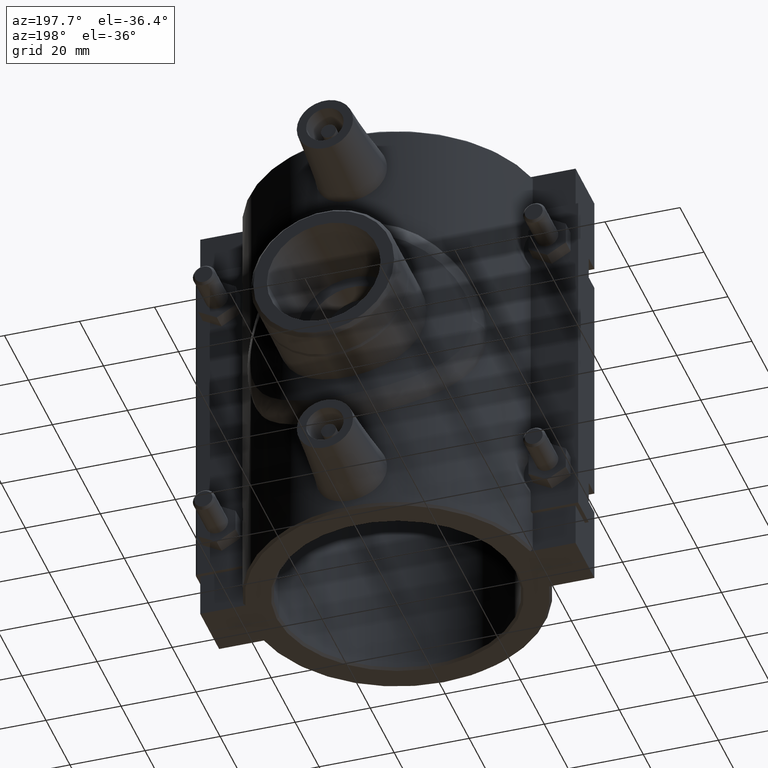
[diagram: clean part render]
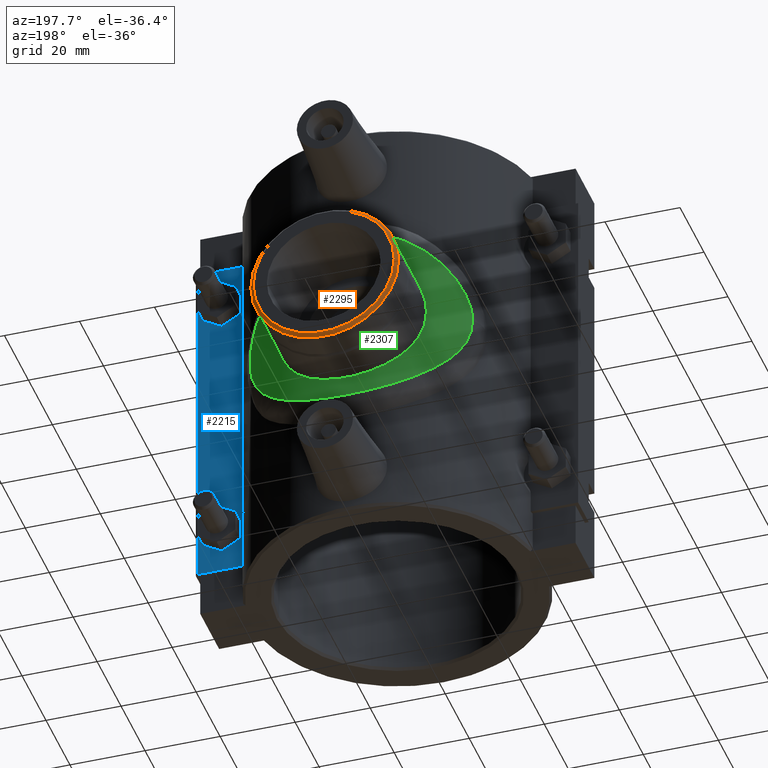
[diagram: same view with three faces highlighted in distinct colors, each labeled with its STEP entity id]
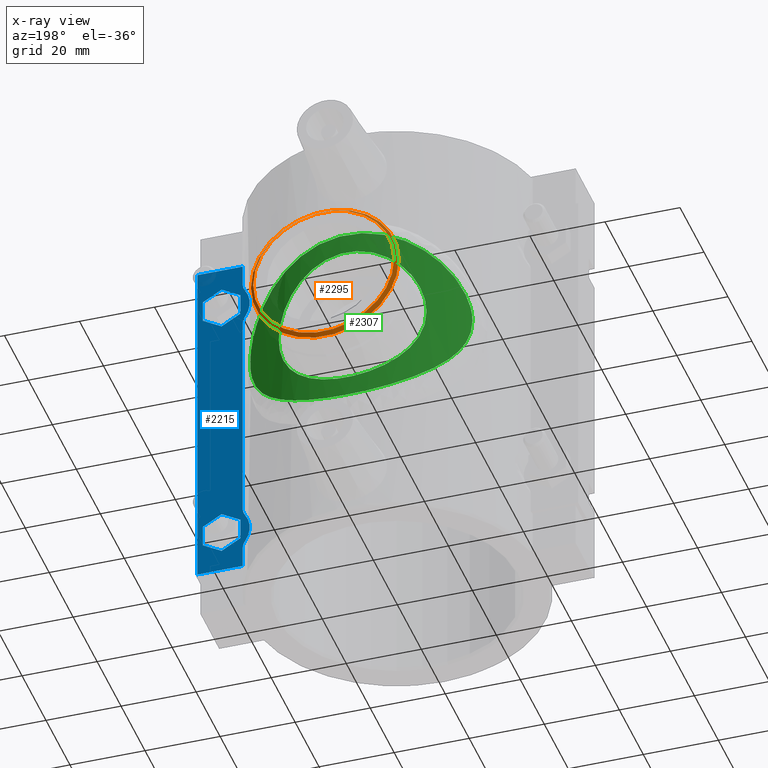
[diagram: x-ray of the same camera — body ghosted, the three highlighted faces saturated]
A machine part, auxiliary view with three faces highlighted in distinct colors.
The next image is the same camera in x-ray (body ghosted, the three faces saturated) — at least one of them is partly hidden behind the body in this view.
Their STEP definitions:

[orange] entity #2295 — the highlighted conical surface has half-angle 45 deg.
#31=CONICAL_SURFACE('',#2486,19.234785,44.9999999999999);
#120=FACE_BOUND('',#436,.T.);
#264=FACE_OUTER_BOUND('',#435,.T.);
#435=EDGE_LOOP('',(#1957));
#436=EDGE_LOOP('',(#1958));
#931=CIRCLE('',#2487,18.78042);
#932=CIRCLE('',#2488,19.68915);
#1136=VERTEX_POINT('',#4221);
#1137=VERTEX_POINT('',#4223);
#1428=EDGE_CURVE('',#1136,#1136,#931,.T.);
#1429=EDGE_CURVE('',#1137,#1137,#932,.T.);
#1957=ORIENTED_EDGE('',*,*,#1428,.T.);
#1958=ORIENTED_EDGE('',*,*,#1429,.T.);
#2295=ADVANCED_FACE('',(#264,#120),#31,.T.);
#2486=AXIS2_PLACEMENT_3D('',#4220,#3007,#3008);
#2487=AXIS2_PLACEMENT_3D('',#4222,#3009,#3010);
#2488=AXIS2_PLACEMENT_3D('',#4224,#3011,#3012);
#3007=DIRECTION('center_axis',(0.,-1.,0.));
#3008=DIRECTION('ref_axis',(1.,0.,0.));
#3009=DIRECTION('center_axis',(0.,-1.,0.));
#3010=DIRECTION('ref_axis',(1.,0.,0.));
#3011=DIRECTION('center_axis',(0.,1.,0.));
#3012=DIRECTION('ref_axis',(1.,0.,0.));
#4220=CARTESIAN_POINT('Origin',(0.,61.045635,0.));
#4221=CARTESIAN_POINT('',(-18.78042,61.5,-2.29993812396429E-15));
#4222=CARTESIAN_POINT('Origin',(0.,61.5,0.));
#4223=CARTESIAN_POINT('',(-19.68915,60.59127,2.41122545254321E-15));
#4224=CARTESIAN_POINT('Origin',(0.,60.59127,0.));

[blue] entity #2215 — the highlighted planar face has unit normal (-0, 1, 0).
#90=FACE_BOUND('',#326,.T.);
#91=FACE_BOUND('',#327,.T.);
#145=B_SPLINE_CURVE_WITH_KNOTS('',3,(#3436,#3437,#3438,#3439,#3440,#3441,
#3442),.UNSPECIFIED.,.F.,.F.,(4,3,4),(-0.211530269968673,-0.106492131072809,
0.),.UNSPECIFIED.);
#146=B_SPLINE_CURVE_WITH_KNOTS('',3,(#3446,#3447,#3448,#3449,#3450,#3451,
#3452),.UNSPECIFIED.,.F.,.F.,(4,3,4),(-0.211768919236697,-0.1048604840116,
0.),.UNSPECIFIED.);
#147=B_SPLINE_CURVE_WITH_KNOTS('',3,(#3456,#3457,#3458,#3459,#3460,#3461,
#3462),.UNSPECIFIED.,.F.,.F.,(4,3,4),(-0.211530269968692,-0.106492131034653,
0.),.UNSPECIFIED.);
#148=B_SPLINE_CURVE_WITH_KNOTS('',3,(#3466,#3467,#3468,#3469,#3470,#3471,
#3472),.UNSPECIFIED.,.F.,.F.,(4,3,4),(-0.211768919236665,-0.104860484028855,
0.),.UNSPECIFIED.);
#184=FACE_OUTER_BOUND('',#325,.T.);
#325=EDGE_LOOP('',(#1576,#1577,#1578,#1579,#1580,#1581,#1582,#1583,#1584,
#1585,#1586,#1587));
#326=EDGE_LOOP('',(#1588,#1589,#1590,#1591,#1592,#1593));
#327=EDGE_LOOP('',(#1594,#1595,#1596,#1597,#1598,#1599));
#543=LINE('',#3429,#734);
#544=LINE('',#3432,#735);
#545=LINE('',#3434,#736);
#546=LINE('',#3454,#737);
#547=LINE('',#3474,#738);
#548=LINE('',#3475,#739);
#549=LINE('',#3478,#740);
#550=LINE('',#3480,#741);
#551=LINE('',#3482,#742);
#552=LINE('',#3484,#743);
#553=LINE('',#3486,#744);
#554=LINE('',#3487,#745);
#555=LINE('',#3490,#746);
#556=LINE('',#3492,#747);
#557=LINE('',#3494,#748);
#558=LINE('',#3496,#749);
#559=LINE('',#3498,#750);
#560=LINE('',#3499,#751);
#734=VECTOR('',#2642,94.4);
#735=VECTOR('',#2645,12.1382351813684);
#736=VECTOR('',#2646,5.66749808671728);
#737=VECTOR('',#2649,58.5349961734345);
#738=VECTOR('',#2652,5.66749808671728);
#739=VECTOR('',#2653,12.1382351813684);
#740=VECTOR('',#2654,5.77350269189626);
#741=VECTOR('',#2655,5.77350269189625);
#742=VECTOR('',#2656,5.77350269189625);
#743=VECTOR('',#2657,5.77350269189625);
#744=VECTOR('',#2658,5.77350269189626);
#745=VECTOR('',#2659,5.77350269189626);
#746=VECTOR('',#2660,5.77350269189626);
#747=VECTOR('',#2661,5.77350269189626);
#748=VECTOR('',#2662,5.77350269189625);
#749=VECTOR('',#2663,5.77350269189626);
#750=VECTOR('',#2664,5.77350269189624);
#751=VECTOR('',#2665,5.77350269189627);
#881=CIRCLE('',#2361,7.5);
#882=CIRCLE('',#2362,7.5);
#999=VERTEX_POINT('',#3422);
#1002=VERTEX_POINT('',#3427);
#1003=VERTEX_POINT('',#3431);
#1004=VERTEX_POINT('',#3433);
#1005=VERTEX_POINT('',#3435);
#1006=VERTEX_POINT('',#3443);
#1007=VERTEX_POINT('',#3445);
#1008=VERTEX_POINT('',#3453);
#1009=VERTEX_POINT('',#3455);
#1010=VERTEX_POINT('',#3463);
#1011=VERTEX_POINT('',#3465);
#1012=VERTEX_POINT('',#3473);
#1013=VERTEX_POINT('',#3476);
#1014=VERTEX_POINT('',#3477);
#1015=VERTEX_POINT('',#3479);
#1016=VERTEX_POINT('',#3481);
#1017=VERTEX_POINT('',#3483);
#1018=VERTEX_POINT('',#3485);
#1019=VERTEX_POINT('',#3488);
#1020=VERTEX_POINT('',#3489);
#1021=VERTEX_POINT('',#3491);
#1022=VERTEX_POINT('',#3493);
#1023=VERTEX_POINT('',#3495);
#1024=VERTEX_POINT('',#3497);
#1234=EDGE_CURVE('',#1002,#999,#543,.T.);
#1235=EDGE_CURVE('',#1003,#1002,#544,.T.);
#1236=EDGE_CURVE('',#1004,#1003,#545,.T.);
#1237=EDGE_CURVE('',#1005,#1004,#145,.T.);
#1238=EDGE_CURVE('',#1006,#1005,#881,.T.);
#1239=EDGE_CURVE('',#1007,#1006,#146,.T.);
#1240=EDGE_CURVE('',#1008,#1007,#546,.T.);
#1241=EDGE_CURVE('',#1009,#1008,#147,.T.);
#1242=EDGE_CURVE('',#1010,#1009,#882,.T.);
#1243=EDGE_CURVE('',#1011,#1010,#148,.T.);
#1244=EDGE_CURVE('',#1012,#1011,#547,.T.);
#1245=EDGE_CURVE('',#999,#1012,#548,.T.);
#1246=EDGE_CURVE('',#1013,#1014,#549,.T.);
#1247=EDGE_CURVE('',#1015,#1013,#550,.T.);
#1248=EDGE_CURVE('',#1016,#1015,#551,.T.);
#1249=EDGE_CURVE('',#1017,#1016,#552,.T.);
#1250=EDGE_CURVE('',#1018,#1017,#553,.T.);
#1251=EDGE_CURVE('',#1014,#1018,#554,.T.);
#1252=EDGE_CURVE('',#1019,#1020,#555,.T.);
#1253=EDGE_CURVE('',#1021,#1019,#556,.T.);
#1254=EDGE_CURVE('',#1022,#1021,#557,.T.);
#1255=EDGE_CURVE('',#1023,#1022,#558,.T.);
#1256=EDGE_CURVE('',#1024,#1023,#559,.T.);
#1257=EDGE_CURVE('',#1020,#1024,#560,.T.);
#1576=ORIENTED_EDGE('',*,*,#1234,.F.);
#1577=ORIENTED_EDGE('',*,*,#1235,.F.);
#1578=ORIENTED_EDGE('',*,*,#1236,.F.);
#1579=ORIENTED_EDGE('',*,*,#1237,.F.);
#1580=ORIENTED_EDGE('',*,*,#1238,.F.);
#1581=ORIENTED_EDGE('',*,*,#1239,.F.);
#1582=ORIENTED_EDGE('',*,*,#1240,.F.);
#1583=ORIENTED_EDGE('',*,*,#1241,.F.);
#1584=ORIENTED_EDGE('',*,*,#1242,.F.);
#1585=ORIENTED_EDGE('',*,*,#1243,.F.);
#1586=ORIENTED_EDGE('',*,*,#1244,.F.);
#1587=ORIENTED_EDGE('',*,*,#1245,.F.);
#1588=ORIENTED_EDGE('',*,*,#1246,.F.);
#1589=ORIENTED_EDGE('',*,*,#1247,.F.);
#1590=ORIENTED_EDGE('',*,*,#1248,.F.);
#1591=ORIENTED_EDGE('',*,*,#1249,.F.);
#1592=ORIENTED_EDGE('',*,*,#1250,.F.);
#1593=ORIENTED_EDGE('',*,*,#1251,.F.);
#1594=ORIENTED_EDGE('',*,*,#1252,.F.);
#1595=ORIENTED_EDGE('',*,*,#1253,.F.);
#1596=ORIENTED_EDGE('',*,*,#1254,.F.);
#1597=ORIENTED_EDGE('',*,*,#1255,.F.);
#1598=ORIENTED_EDGE('',*,*,#1256,.F.);
#1599=ORIENTED_EDGE('',*,*,#1257,.F.);
#2128=PLANE('',#2360);
#2215=ADVANCED_FACE('',(#184,#90,#91),#2128,.T.);
#2360=AXIS2_PLACEMENT_3D('',#3430,#2643,#2644);
#2361=AXIS2_PLACEMENT_3D('',#3444,#2647,#2648);
#2362=AXIS2_PLACEMENT_3D('',#3464,#2650,#2651);
#2642=DIRECTION('',(0.,0.,1.));
#2643=DIRECTION('center_axis',(-3.11124446428879E-16,1.,0.));
#2644=DIRECTION('ref_axis',(-1.,-3.5527136788005E-16,0.));
#2645=DIRECTION('',(1.,3.11124446428879E-16,0.));
#2646=DIRECTION('',(0.,0.,-1.));
#2647=DIRECTION('center_axis',(3.11124446428879E-16,-1.,0.));
#2648=DIRECTION('ref_axis',(-1.,0.,0.));
#2649=DIRECTION('',(0.,0.,-1.));
#2650=DIRECTION('center_axis',(3.11124446428879E-16,-1.,0.));
#2651=DIRECTION('ref_axis',(-1.,0.,0.));
#2652=DIRECTION('',(0.,0.,-1.));
#2653=DIRECTION('',(-1.,-3.11124446428879E-16,0.));
#2654=DIRECTION('',(-0.866025403784438,-2.6944167434578E-16,-0.500000000000001));
#2655=DIRECTION('',(3.84592537276713E-16,1.19656140260895E-31,-1.));
#2656=DIRECTION('',(0.866025403784439,2.6944167434578E-16,-0.5));
#2657=DIRECTION('',(0.866025403784439,2.6944167434578E-16,0.5));
#2658=DIRECTION('',(0.,0.,1.));
#2659=DIRECTION('',(-0.866025403784439,-2.6944167434578E-16,0.5));
#2660=DIRECTION('',(-0.866025403784438,-2.6944167434578E-16,-0.5));
#2661=DIRECTION('',(1.53837014910685E-15,4.78624561043581E-31,-1.));
#2662=DIRECTION('',(0.866025403784438,2.6944167434578E-16,-0.500000000000001));
#2663=DIRECTION('',(0.866025403784438,2.6944167434578E-16,0.5));
#2664=DIRECTION('',(0.,0.,1.));
#2665=DIRECTION('',(-0.866025403784437,-2.69441674345779E-16,0.500000000000003));
#3422=CARTESIAN_POINT('',(50.5,8.87499999999999,47.2));
#3427=CARTESIAN_POINT('',(50.5,8.87499999999999,-47.2));
#3429=CARTESIAN_POINT('',(50.5,8.87499999999999,0.));
#3430=CARTESIAN_POINT('Origin',(51.,8.87499999999999,0.));
#3431=CARTESIAN_POINT('',(38.3617648186316,8.87499999999999,-47.2));
#3432=CARTESIAN_POINT('',(51.,8.87499999999999,-47.2));
#3433=CARTESIAN_POINT('',(38.3617648186318,8.87499999999956,-41.5325019132827));
#3434=CARTESIAN_POINT('',(38.3617648186316,8.87499999999999,0.));
#3435=CARTESIAN_POINT('',(37.7471866978184,8.87499999999957,-39.541536648161));
#3436=CARTESIAN_POINT('Ctrl Pts',(37.747068158736,8.8752554691271,-39.5414431110933));
#3437=CARTESIAN_POINT('Ctrl Pts',(37.9405803836634,8.87519201584982,-39.8337387682393));
#3438=CARTESIAN_POINT('Ctrl Pts',(38.0924703951239,8.87496538776836,-40.151996925017));
#3439=CARTESIAN_POINT('Ctrl Pts',(38.1975827959326,8.87490562081074,-40.4862403174724));
#3440=CARTESIAN_POINT('Ctrl Pts',(38.30415021689,8.87484502652802,-40.8251104796226));
#3441=CARTESIAN_POINT('Ctrl Pts',(38.3617648186316,8.87499999999999,-41.1775281430398));
#3442=CARTESIAN_POINT('Ctrl Pts',(38.3617648186316,8.87499999999999,-41.5325019132825));
#3443=CARTESIAN_POINT('',(37.7471866978184,8.87499999999957,-31.2584633518389));
#3444=CARTESIAN_POINT('Origin',(44.,8.87499999999999,-35.4));
#3445=CARTESIAN_POINT('',(38.3617648186318,8.87499999999956,-29.2674980867173));
#3446=CARTESIAN_POINT('Ctrl Pts',(38.3617648186316,8.87499999999999,-29.2674980867175));
#3447=CARTESIAN_POINT('Ctrl Pts',(38.3617648186316,8.87499999999999,-29.6234578558171));
#3448=CARTESIAN_POINT('Ctrl Pts',(38.3038206098403,8.87486419091363,-29.9768439606245));
#3449=CARTESIAN_POINT('Ctrl Pts',(38.1966612921234,8.87497593352077,-30.3165765367885));
#3450=CARTESIAN_POINT('Ctrl Pts',(38.0915547315561,8.87508553557269,-30.6498011536866));
#3451=CARTESIAN_POINT('Ctrl Pts',(37.9399401389409,8.87539008148817,-30.9671018699415));
#3452=CARTESIAN_POINT('Ctrl Pts',(37.7469418071715,8.87556371530486,-31.2585802726633));
#3453=CARTESIAN_POINT('',(38.3617648186318,8.87499999999956,29.2674980867173));
#3454=CARTESIAN_POINT('',(38.3617648186316,8.87499999999999,0.));
#3455=CARTESIAN_POINT('',(37.7471866978184,8.87499999999956,31.2584633518389));
#3456=CARTESIAN_POINT('Ctrl Pts',(37.7469023318474,8.87566012733219,31.2585617442794));
#3457=CARTESIAN_POINT('Ctrl Pts',(37.9404534414566,8.87545328577758,30.9662647508205));
#3458=CARTESIAN_POINT('Ctrl Pts',(38.0923904862388,8.87512273770224,30.648004633364));
#3459=CARTESIAN_POINT('Ctrl Pts',(38.1975344370606,8.87499785445629,30.3137604253841));
#3460=CARTESIAN_POINT('Ctrl Pts',(38.3041338446858,8.87487124251203,29.9748894366653));
#3461=CARTESIAN_POINT('Ctrl Pts',(38.3617648186316,8.87499999999999,29.622471856833));
#3462=CARTESIAN_POINT('Ctrl Pts',(38.3617648186316,8.87499999999999,29.2674980867175));
#3463=CARTESIAN_POINT('',(37.7471866978184,8.87499999999956,39.541536648161));
#3464=CARTESIAN_POINT('Origin',(44.,8.87499999999999,35.4));
#3465=CARTESIAN_POINT('',(38.3617648186318,8.87499999999956,41.5325019132827));
#3466=CARTESIAN_POINT('Ctrl Pts',(38.3617648186316,8.87499999999999,41.5325019132825));
#3467=CARTESIAN_POINT('Ctrl Pts',(38.3617648186316,8.87499999999999,41.1765421442404));
#3468=CARTESIAN_POINT('Ctrl Pts',(38.3038329853919,8.8748443358295,40.8231581093027));
#3469=CARTESIAN_POINT('Ctrl Pts',(38.1966981580126,8.87490511236353,40.4834304128558));
#3470=CARTESIAN_POINT('Ctrl Pts',(38.0916156186086,8.87496472465476,40.1502105820895));
#3471=CARTESIAN_POINT('Ctrl Pts',(37.9400368591873,8.87518931052998,39.8329176448815));
#3472=CARTESIAN_POINT('Ctrl Pts',(37.7470699965937,8.87525097919414,39.5414454299515));
#3473=CARTESIAN_POINT('',(38.3617648186316,8.87499999999999,47.2));
#3474=CARTESIAN_POINT('',(38.3617648186316,8.87499999999999,0.));
#3475=CARTESIAN_POINT('',(51.,8.87499999999999,47.2));
#3476=CARTESIAN_POINT('',(49.,8.87499999999999,32.5132486540519));
#3477=CARTESIAN_POINT('',(44.,8.87499999999999,29.6264973081037));
#3478=CARTESIAN_POINT('',(42.7106751765077,8.87499999999999,28.8821052741876));
#3479=CARTESIAN_POINT('',(49.,8.87499999999999,38.2867513459481));
#3480=CARTESIAN_POINT('',(49.,8.87499999999999,19.1433756729741));
#3481=CARTESIAN_POINT('',(44.,8.87499999999999,41.1735026918963));
#3482=CARTESIAN_POINT('',(55.5393248234923,8.87499999999999,34.5112703987865));
#3483=CARTESIAN_POINT('',(39.,8.87499999999999,38.2867513459481));
#3484=CARTESIAN_POINT('',(35.2106751765077,8.87499999999999,36.0989836390579));
#3485=CARTESIAN_POINT('',(39.,8.87499999999999,32.5132486540519));
#3486=CARTESIAN_POINT('',(39.,8.87499999999999,16.2566243270259));
#3487=CARTESIAN_POINT('',(53.0393248234923,8.87499999999999,24.407640687968));
#3488=CARTESIAN_POINT('',(49.,8.87499999999999,-38.2867513459481));
#3489=CARTESIAN_POINT('',(44.,8.87499999999999,-41.1735026918963));
#3490=CARTESIAN_POINT('',(58.0393248234923,8.87499999999999,-33.0678947258124));
#3491=CARTESIAN_POINT('',(49.,8.87499999999999,-32.5132486540519));
#3492=CARTESIAN_POINT('',(49.,8.87499999999999,-16.2566243270259));
#3493=CARTESIAN_POINT('',(44.,8.87499999999999,-29.6264973081037));
#3494=CARTESIAN_POINT('',(40.2106751765077,8.87499999999999,-27.4387296012135));
#3495=CARTESIAN_POINT('',(39.,8.87499999999999,-32.5132486540519));
#3496=CARTESIAN_POINT('',(50.5393248234923,8.87499999999999,-25.8510163609421));
#3497=CARTESIAN_POINT('',(39.,8.87499999999999,-38.2867513459481));
#3498=CARTESIAN_POINT('',(39.,8.87499999999999,-19.1433756729741));
#3499=CARTESIAN_POINT('',(37.7106751765077,8.87499999999999,-37.542359312032));

[green] entity #2307 — the highlighted cylindrical surface (partial cylindrical patch) has radius 42.21 mm, axis along (0, 0, -1).
#80=CYLINDRICAL_SURFACE('',#2507,42.21);
#130=FACE_BOUND('',#458,.T.);
#161=B_SPLINE_CURVE_WITH_KNOTS('',3,(#4238,#4239,#4240,#4241,#4242,#4243,
#4244,#4245,#4246,#4247,#4248,#4249,#4250,#4251,#4252,#4253,#4254,#4255,
#4256,#4257,#4258,#4259,#4260,#4261,#4262,#4263,#4264,#4265,#4266,#4267,
#4268,#4269,#4270,#4271,#4272,#4273,#4274,#4275,#4276,#4277,#4278,#4279,
#4280,#4281,#4282,#4283,#4284,#4285,#4286,#4287,#4288,#4289,#4290,#4291,
#4292,#4293,#4294,#4295,#4296,#4297,#4298,#4299,#4300,#4301,#4302,#4303),
 .UNSPECIFIED.,.T.,.F.,(4,2,2,2,2,2,2,2,2,2,2,2,2,2,2,2,2,2,2,2,2,2,2,2,
2,2,2,2,2,2,2,2,4),(0.,0.37768109105937,0.75536218211874,1.13304327317811,
1.51072436423748,1.88765349560439,2.2645826269713,2.64151175833821,3.01844088970513,
3.39537002107204,3.77229915243895,4.14922828380586,4.52615741517277,4.90383850623214,
5.28151959729151,5.65920068835088,6.03688177941025,6.41456287046962,6.79224396152899,
7.16992505258836,7.54760614364773,7.92453527501464,8.30146440638156,8.67839353774847,
9.05532266911538,9.43225180048229,9.8091809318492,10.1861100632161,10.563039194583,
10.9407202856424,11.3184013767018,11.6960824677611,12.0737635588205),
 .UNSPECIFIED.);
#163=B_SPLINE_CURVE_WITH_KNOTS('',3,(#4486,#4487,#4488,#4489,#4490,#4491,
#4492,#4493,#4494,#4495,#4496,#4497,#4498,#4499,#4500,#4501,#4502,#4503,
#4504,#4505,#4506,#4507,#4508,#4509,#4510,#4511,#4512),.UNSPECIFIED.,.T.,
 .F.,(4,1,1,1,1,1,1,1,1,1,1,1,1,1,1,1,1,1,1,1,1,1,1,1,4),(-6.65205029876428E-17,
0.716981529182781,1.43396305836556,2.86792611673113,3.58490764591391,4.30188917509669,
5.01887070427947,5.73585223346225,6.69182760570596,7.64780297794967,8.60377835019338,
9.55975372243709,10.0377414085589,10.5157290946808,11.4717044669245,12.4276798391682,
13.3836552114119,14.3396305836556,15.2956059558993,16.251581328143,17.2075567003868,
17.9245382295695,18.6415197587523,19.3585012879351,20.0754828171179),
 .UNSPECIFIED.);
#276=FACE_OUTER_BOUND('',#457,.T.);
#457=EDGE_LOOP('',(#1988));
#458=EDGE_LOOP('',(#1989));
#1142=VERTEX_POINT('',#4237);
#1147=VERTEX_POINT('',#4484);
#1434=EDGE_CURVE('',#1142,#1142,#161,.T.);
#1440=EDGE_CURVE('',#1147,#1147,#163,.T.);
#1988=ORIENTED_EDGE('',*,*,#1440,.F.);
#1989=ORIENTED_EDGE('',*,*,#1434,.T.);
#2307=ADVANCED_FACE('',(#276,#130),#80,.T.);
#2507=AXIS2_PLACEMENT_3D('',#4542,#3049,#3050);
#3049=DIRECTION('center_axis',(0.,0.,-1.));
#3050=DIRECTION('ref_axis',(1.,0.,0.));
#4237=CARTESIAN_POINT('',(-19.68915,37.3365969563042,2.77555756156289E-16));
#4238=CARTESIAN_POINT('Ctrl Pts',(-19.68915,37.3365969563042,0.));
#4239=CARTESIAN_POINT('Ctrl Pts',(-19.68915,37.3365969563042,-1.2589369701979));
#4240=CARTESIAN_POINT('Ctrl Pts',(-19.5664905095822,37.4021149846127,-2.55311670893239));
#4241=CARTESIAN_POINT('Ctrl Pts',(-19.0583071767246,37.6635989178865,-5.11340235658021));
#4242=CARTESIAN_POINT('Ctrl Pts',(-18.6729764251811,37.859173970163,-6.3795864904492));
#4243=CARTESIAN_POINT('Ctrl Pts',(-17.6630423104867,38.3407613476828,-8.79750985015326));
#4244=CARTESIAN_POINT('Ctrl Pts',(-17.0376369550443,38.6265577437851,-9.95154009283417));
#4245=CARTESIAN_POINT('Ctrl Pts',(-15.5994821832556,39.2294301720613,-12.0818201874866));
#4246=CARTESIAN_POINT('Ctrl Pts',(-14.7865508537836,39.5459234437478,-13.0581121078146));
#4247=CARTESIAN_POINT('Ctrl Pts',(-13.0598327608982,40.1492164513929,-14.7848302007001));
#4248=CARTESIAN_POINT('Ctrl Pts',(-12.0843838302354,40.4582462955149,-15.5975254849371));
#4249=CARTESIAN_POINT('Ctrl Pts',(-9.95372598792409,41.0344412024609,-17.0363867312337));
#4250=CARTESIAN_POINT('Ctrl Pts',(-8.79846842390776,41.3011455847002,-17.662665090129));
#4251=CARTESIAN_POINT('Ctrl Pts',(-6.378007874646,41.743486795481,-18.6736126230525));
#4252=CARTESIAN_POINT('Ctrl Pts',(-5.11054467082288,41.9192011369408,-19.0590875837847));
#4253=CARTESIAN_POINT('Ctrl Pts',(-2.54977892867686,42.1525292029955,-19.5669393053603));
#4254=CARTESIAN_POINT('Ctrl Pts',(-1.25643043788971,42.21,-19.68915));
#4255=CARTESIAN_POINT('Ctrl Pts',(1.2564304378897,42.21,-19.68915));
#4256=CARTESIAN_POINT('Ctrl Pts',(2.54977892867686,42.1525292029955,-19.5669393053603));
#4257=CARTESIAN_POINT('Ctrl Pts',(5.11054467082288,41.9192011369408,-19.0590875837847));
#4258=CARTESIAN_POINT('Ctrl Pts',(6.37800787464599,41.743486795481,-18.6736126230525));
#4259=CARTESIAN_POINT('Ctrl Pts',(8.79846842390776,41.3011455847002,-17.662665090129));
#4260=CARTESIAN_POINT('Ctrl Pts',(9.95372598792408,41.0344412024609,-17.0363867312337));
#4261=CARTESIAN_POINT('Ctrl Pts',(12.0843838302354,40.4582462955149,-15.5975254849371));
#4262=CARTESIAN_POINT('Ctrl Pts',(13.0598327608982,40.1492164513929,-14.7848302007001));
#4263=CARTESIAN_POINT('Ctrl Pts',(14.7865508537836,39.5459234437478,-13.0581121078146));
#4264=CARTESIAN_POINT('Ctrl Pts',(15.5994821832556,39.2294301720613,-12.0818201874866));
#4265=CARTESIAN_POINT('Ctrl Pts',(17.0376369550443,38.6265577437851,-9.95154009283418));
#4266=CARTESIAN_POINT('Ctrl Pts',(17.6630423104867,38.3407613476828,-8.79750985015327));
#4267=CARTESIAN_POINT('Ctrl Pts',(18.6729764251811,37.859173970163,-6.37958649044921));
#4268=CARTESIAN_POINT('Ctrl Pts',(19.0583071767246,37.6635989178865,-5.11340235658021));
#4269=CARTESIAN_POINT('Ctrl Pts',(19.5664905095822,37.4021149846127,-2.55311670893239));
#4270=CARTESIAN_POINT('Ctrl Pts',(19.68915,37.3365969563041,-1.2589369701979));
#4271=CARTESIAN_POINT('Ctrl Pts',(19.68915,37.3365969563041,1.2589369701979));
#4272=CARTESIAN_POINT('Ctrl Pts',(19.5664905095822,37.4021149846127,2.55311670893239));
#4273=CARTESIAN_POINT('Ctrl Pts',(19.0583071767247,37.6635989178865,5.1134023565802));
#4274=CARTESIAN_POINT('Ctrl Pts',(18.6729764251812,37.859173970163,6.37958649044919));
#4275=CARTESIAN_POINT('Ctrl Pts',(17.6630423104867,38.3407613476828,8.79750985015325));
#4276=CARTESIAN_POINT('Ctrl Pts',(17.0376369550443,38.6265577437851,9.95154009283417));
#4277=CARTESIAN_POINT('Ctrl Pts',(15.5994821832556,39.2294301720613,12.0818201874866));
#4278=CARTESIAN_POINT('Ctrl Pts',(14.7865508537836,39.5459234437478,13.0581121078146));
#4279=CARTESIAN_POINT('Ctrl Pts',(13.0598327608982,40.1492164513929,14.7848302007001));
#4280=CARTESIAN_POINT('Ctrl Pts',(12.0843838302354,40.4582462955149,15.5975254849371));
#4281=CARTESIAN_POINT('Ctrl Pts',(9.95372598792409,41.0344412024609,17.0363867312337));
#4282=CARTESIAN_POINT('Ctrl Pts',(8.79846842390777,41.3011455847002,17.662665090129));
#4283=CARTESIAN_POINT('Ctrl Pts',(6.37800787464601,41.743486795481,18.6736126230525));
#4284=CARTESIAN_POINT('Ctrl Pts',(5.1105446708229,41.9192011369408,19.0590875837847));
#4285=CARTESIAN_POINT('Ctrl Pts',(2.54977892867687,42.1525292029955,19.5669393053603));
#4286=CARTESIAN_POINT('Ctrl Pts',(1.25643043788971,42.21,19.68915));
#4287=CARTESIAN_POINT('Ctrl Pts',(-1.2564304378897,42.21,19.68915));
#4288=CARTESIAN_POINT('Ctrl Pts',(-2.54977892867686,42.1525292029955,19.5669393053603));
#4289=CARTESIAN_POINT('Ctrl Pts',(-5.11054467082289,41.9192011369408,19.0590875837847));
#4290=CARTESIAN_POINT('Ctrl Pts',(-6.37800787464599,41.743486795481,18.6736126230525));
#4291=CARTESIAN_POINT('Ctrl Pts',(-8.79846842390775,41.3011455847002,17.662665090129));
#4292=CARTESIAN_POINT('Ctrl Pts',(-9.95372598792408,41.0344412024609,17.0363867312337));
#4293=CARTESIAN_POINT('Ctrl Pts',(-12.0843838302354,40.4582462955149,15.5975254849371));
#4294=CARTESIAN_POINT('Ctrl Pts',(-13.0598327608981,40.1492164513929,14.7848302007001));
#4295=CARTESIAN_POINT('Ctrl Pts',(-14.7865508537836,39.5459234437478,13.0581121078146));
#4296=CARTESIAN_POINT('Ctrl Pts',(-15.5994821832556,39.2294301720613,12.0818201874866));
#4297=CARTESIAN_POINT('Ctrl Pts',(-17.0376369550443,38.6265577437851,9.95154009283419));
#4298=CARTESIAN_POINT('Ctrl Pts',(-17.6630423104867,38.3407613476828,8.79750985015328));
#4299=CARTESIAN_POINT('Ctrl Pts',(-18.6729764251811,37.859173970163,6.37958649044921));
#4300=CARTESIAN_POINT('Ctrl Pts',(-19.0583071767246,37.6635989178865,5.11340235658021));
#4301=CARTESIAN_POINT('Ctrl Pts',(-19.5664905095822,37.4021149846127,2.5531167089324));
#4302=CARTESIAN_POINT('Ctrl Pts',(-19.68915,37.3365969563042,1.2589369701979));
#4303=CARTESIAN_POINT('Ctrl Pts',(-19.68915,37.3365969563042,2.77555756156289E-16));
#4484=CARTESIAN_POINT('',(-29.621052631579,30.0712045152373,-3.33066907387547E-15));
#4486=CARTESIAN_POINT('Ctrl Pts',(-29.6215804615767,30.0701233708278,0.000104152808501634));
#4487=CARTESIAN_POINT('Ctrl Pts',(-29.6217626496003,30.0697865512658,-1.96030865685316));
#4488=CARTESIAN_POINT('Ctrl Pts',(-29.0722979278833,30.6241010499575,-5.8821358975246));
#4489=CARTESIAN_POINT('Ctrl Pts',(-26.0340746190397,33.3798933045314,-12.9738188741493));
#4490=CARTESIAN_POINT('Ctrl Pts',(-20.6474972541707,37.1661028656926,-18.7066510414634));
#4491=CARTESIAN_POINT('Ctrl Pts',(-13.2969869899993,40.2229377030634,-22.7568175811318));
#4492=CARTESIAN_POINT('Ctrl Pts',(-6.91569528045219,41.8262696689989,-24.7351982633128));
#4493=CARTESIAN_POINT('Ctrl Pts',(-0.00188312117154206,42.4021518388467,
-25.4329169246039));
#4494=CARTESIAN_POINT('Ctrl Pts',(7.68852158155299,41.7619502487153,-24.657955596579));
#4495=CARTESIAN_POINT('Ctrl Pts',(15.3628107843253,39.5955928494186,-21.9773067361582));
#4496=CARTESIAN_POINT('Ctrl Pts',(22.0763486849323,36.191670737565,-17.3121526975063));
#4497=CARTESIAN_POINT('Ctrl Pts',(26.948314087373,32.6170592557517,-11.3021493822465));
#4498=CARTESIAN_POINT('Ctrl Pts',(29.2578067195545,30.4313528859741,-5.23546174788485));
#4499=CARTESIAN_POINT('Ctrl Pts',(29.7422743976104,29.9510504825772,-0.000662860777347123));
#4500=CARTESIAN_POINT('Ctrl Pts',(29.2582115729108,30.4311262094227,5.23514619055923));
#4501=CARTESIAN_POINT('Ctrl Pts',(26.9480960857009,32.6166403414341,11.3018498912586));
#4502=CARTESIAN_POINT('Ctrl Pts',(22.0769191404697,36.1925442888274,17.3119718917481));
#4503=CARTESIAN_POINT('Ctrl Pts',(15.3616580002512,39.5943239005878,21.9765333763081));
#4504=CARTESIAN_POINT('Ctrl Pts',(6.99263680007831,41.961172149556,24.9041048433279));
#4505=CARTESIAN_POINT('Ctrl Pts',(-2.36371829093225,42.4924907896312,25.5392700102219));
#4506=CARTESIAN_POINT('Ctrl Pts',(-11.3599072626946,40.9618105404615,23.6907492328842));
#4507=CARTESIAN_POINT('Ctrl Pts',(-18.3108815827598,38.2184866736629,20.1527250648749));
#4508=CARTESIAN_POINT('Ctrl Pts',(-23.3362322964356,35.2813407007189,15.83585309237));
#4509=CARTESIAN_POINT('Ctrl Pts',(-26.7963189733582,32.6859132315554,11.2040584533916));
#4510=CARTESIAN_POINT('Ctrl Pts',(-29.0712047997417,30.6261219673297,5.88034096044536));
#4511=CARTESIAN_POINT('Ctrl Pts',(-29.6213982735531,30.0704601903899,1.96051696247016));
#4512=CARTESIAN_POINT('Ctrl Pts',(-29.6215804615767,30.0701233708278,0.000104152808502178));
#4542=CARTESIAN_POINT('Origin',(0.,0.,59.));